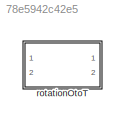
MODEL slx_78e5942c42e5
KIND library
CONFIG AbsTol = auto
CONFIG EnableMultiTasking = off
CONFIG FixedStep = auto
CONFIG MaxStep = auto
CONFIG MinStep = auto
CONFIG RelTol = 1e-3
CONFIG SampleTimeConstraint = Unconstrained
CONFIG Solver = VariableStepAuto
CONFIG SolverName = VariableStepAuto
CONFIG StartTime = 0.0
CONFIG StopTime = 10.0
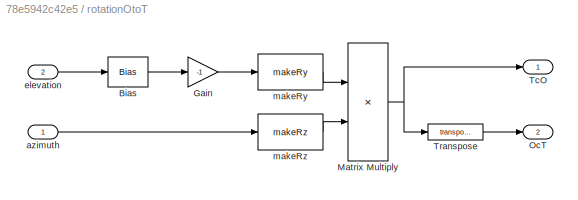
BLOCK [SubSystem] rotationOtoT
  Ports = [2, 2]
  RequestExecContextInheritance = off
BLOCK [Bias] rotationOtoT/Bias
  Bias = pi/2
  SaturateOnIntegerOverflow = off
BLOCK [Gain] rotationOtoT/Gain
  Gain = -1
BLOCK [Product] rotationOtoT/Matrix Multiply
  Multiplication = Matrix(*)
  Ports = [2, 1]
BLOCK [Outport] rotationOtoT/OcT
  Port = 2
BLOCK [Outport] rotationOtoT/TcO
BLOCK [Math] rotationOtoT/Transpose
  Operator = transpose
  Ports = [1, 1]
BLOCK [Inport] rotationOtoT/azimuth
BLOCK [Inport] rotationOtoT/elevation
  Port = 2
BLOCK [Reference] rotationOtoT/makeRy  REF=rotationAboutY/makeRy
  Ports = [1, 1]
  SourceBlock = rotationAboutY/makeRy
  SourceType = SubSystem
BLOCK [Reference] rotationOtoT/makeRz  REF=rotationAboutZ/makeRz
  Ports = [1, 1]
  SourceBlock = rotationAboutZ/makeRz
  SourceType = SubSystem
LINE rotationOtoT/Bias:1 -> rotationOtoT/Gain:1
LINE rotationOtoT/Gain:1 -> rotationOtoT/makeRy:1
NET rotationOtoT/Matrix Multiply:1 -> rotationOtoT/TcO:1, rotationOtoT/Transpose:1
LINE rotationOtoT/Transpose:1 -> rotationOtoT/OcT:1
LINE rotationOtoT/azimuth:1 -> rotationOtoT/makeRz:1
LINE rotationOtoT/elevation:1 -> rotationOtoT/Bias:1
LINE rotationOtoT/makeRy:1 -> rotationOtoT/Matrix Multiply:1
LINE rotationOtoT/makeRz:1 -> rotationOtoT/Matrix Multiply:2
note: NET lines group one-source signal fan-out (src -> all destinations, sorted); 1:1 wires keep LINE
